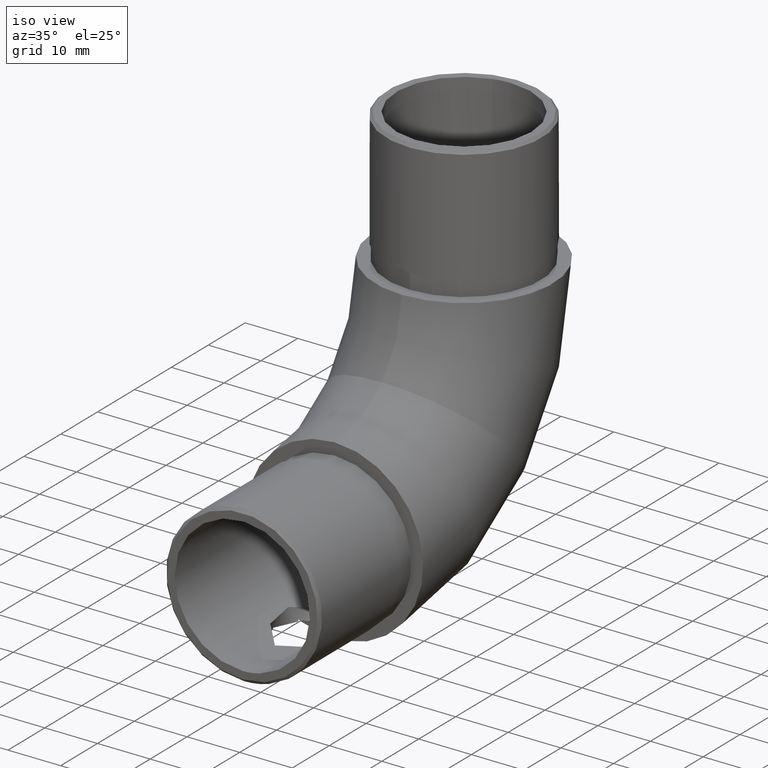
[diagram: clean part render]
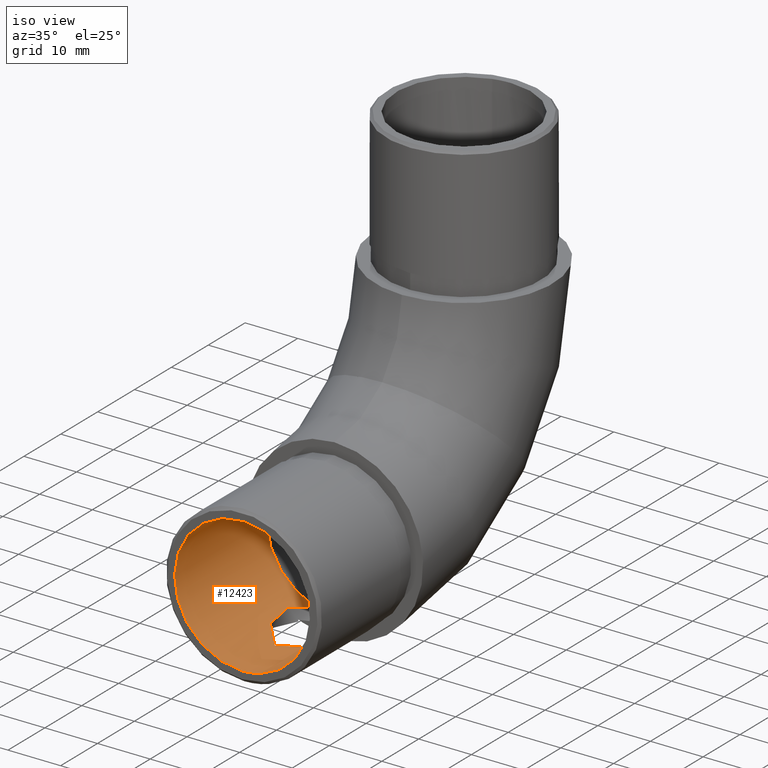
[diagram: same view with one face highlighted and labeled with its STEP entity id]
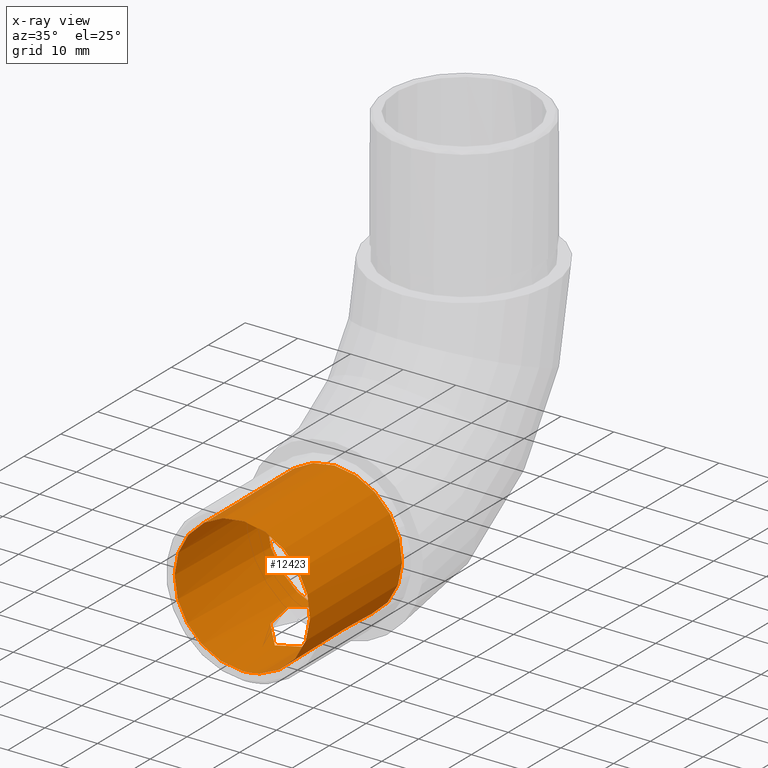
[diagram: x-ray of the same camera — body ghosted, the highlighted face saturated]
A machine part, iso view. The second image highlights one B-rep face of the part: STEP entity #12423.
The next image is the same camera in x-ray: the body ghosted, the highlighted face saturated — about 0% of this face is hidden behind the body in this view.
In plain terms, the highlighted cylindrical surface (bore or boss wall) has radius 12.85 mm, axis along (0, 1, 0).
Its self-contained STEP definition (entity closure, byte-faithful):
#130 = CARTESIAN_POINT ( 'NONE',  ( -4.724138302718724700, -1.278294540377648400, -11.95078086400891200 ) ) ;
#234 = CARTESIAN_POINT ( 'NONE',  ( -5.603455825222154000, -2.953071776140929700, -11.56498078162288400 ) ) ;
#320 = CARTESIAN_POINT ( 'NONE',  ( -1.313630713981051500, -14.45848172756713400, -12.78400375099388400 ) ) ;
#381 = CARTESIAN_POINT ( 'NONE',  ( 3.667890203469062400, -0.2162982495595532100, -12.31636267891674500 ) ) ;
#428 = CARTESIAN_POINT ( 'NONE',  ( -1.491974485709820500, -14.38574768619595900, -12.76429604509493600 ) ) ;
#471 = CARTESIAN_POINT ( 'NONE',  ( -1.839679911237627000, -14.21642703594991100, -12.71883718022304200 ) ) ;
#522 = CARTESIAN_POINT ( 'NONE',  ( 2.806524698150535600, -13.54509039443175000, -12.54292270172299000 ) ) ;
#734 = EDGE_LOOP ( 'NONE', ( #2236 ) ) ;
#1447 = AXIS2_PLACEMENT_3D ( 'NONE', #7666, #14645, #5192 ) ;
#1454 = CARTESIAN_POINT ( 'NONE',  ( -3.674326642183753500, -0.2087081254114504000, -12.31792550725374700 ) ) ;
#1507 = CARTESIAN_POINT ( 'NONE',  ( 3.514593609737754600, -0.1043258097945996400, -12.36112791014595700 ) ) ;
#1544 = CARTESIAN_POINT ( 'NONE',  ( 5.881964456891240400, -4.068810623760592500, -11.42513728814597100 ) ) ;
#1583 = CARTESIAN_POINT ( 'NONE',  ( 0.0000000000000000000, -3.469446951953614200E-015, 6.938893903907228400E-015 ) ) ;
#1595 = CARTESIAN_POINT ( 'NONE',  ( 5.714840056029520300, -3.319481089768712600, -11.50964252525316300 ) ) ;
#1657 = CARTESIAN_POINT ( 'NONE',  ( -5.500592085863894800, -9.040577918652086700, -11.61486406936708900 ) ) ;
#1708 = CARTESIAN_POINT ( 'NONE',  ( 5.979429543904376300, -6.379803961940029700, -11.37405668672119700 ) ) ;
#1758 = AXIS2_PLACEMENT_3D ( 'NONE', #1583, #5247, #14599 ) ;
#2236 = ORIENTED_EDGE ( 'NONE', *, *, #5557, .T. ) ;
#2486 = VERTEX_POINT ( 'NONE', #7036 ) ;
#2544 = CARTESIAN_POINT ( 'NONE',  ( -5.144561838688348500, -1.909217132646148500, -11.77733551524429600 ) ) ;
#2687 = CARTESIAN_POINT ( 'NONE',  ( 0.3993562748103812700, -14.68271605717937700, -12.84523881259817000 ) ) ;
#2714 = VERTEX_POINT ( 'NONE', #9468 ) ;
#2746 = CARTESIAN_POINT ( 'NONE',  ( 5.838458711250458700, -7.532727433130924400, -11.44720440475437300 ) ) ;
#2802 = CARTESIAN_POINT ( 'NONE',  ( 3.961955376853495200, -0.4558108372290828900, -12.22493835465599500 ) ) ;
#2840 = CARTESIAN_POINT ( 'NONE',  ( -3.582336268247616800, -12.73696335491602800, -12.34285981086399900 ) ) ;
#2886 = CARTESIAN_POINT ( 'NONE',  ( 0.9738445634313239700, -14.57009152197657000, -12.81436728556134600 ) ) ;
#3400 = CARTESIAN_POINT ( 'NONE',  ( -3.354947046405669700, -3.469446951953614200E-015, -12.40430692605652000 ) ) ;
#3690 = CARTESIAN_POINT ( 'NONE',  ( -3.354947046405669700, -3.469446951953614200E-015, -12.40430692605652000 ) ) ;
#3741 = CARTESIAN_POINT ( 'NONE',  ( -5.716439292456192900, -3.325143826458879300, -11.50884679561632900 ) ) ;
#3825 = CARTESIAN_POINT ( 'NONE',  ( 5.938130000637488400, -4.455998040028410900, -11.39571595575440800 ) ) ;
#3926 = CARTESIAN_POINT ( 'NONE',  ( 2.513495271976231100, -13.78895452746675700, -12.60595573021510100 ) ) ;
#3964 = CARTESIAN_POINT ( 'NONE',  ( 0.01406883924744318900, -14.71570724275842100, -12.85432741465101900 ) ) ;
#4015 = CARTESIAN_POINT ( 'NONE',  ( 4.500534060605702700, -0.9845006657656376600, -12.03937185160728500 ) ) ;
#4181 = CIRCLE ( 'NONE', #1447, 12.85000000000000000 ) ;
#4900 = CIRCLE ( 'NONE', #1758, 12.85000000000000000 ) ;
#5007 = CARTESIAN_POINT ( 'NONE',  ( 5.389732846709575800, -2.424512344575118700, -11.66531205260086600 ) ) ;
#5048 = CARTESIAN_POINT ( 'NONE',  ( -6.007010476272976800, -5.621919943201527700, -11.35951508050011300 ) ) ;
#5099 = CARTESIAN_POINT ( 'NONE',  ( -4.037643811111709400, -12.12979418525707200, -12.20150621456364900 ) ) ;
#5159 = CARTESIAN_POINT ( 'NONE',  ( 5.309753874246089500, -2.249622677805931400, -11.70205904697741600 ) ) ;
#5192 = DIRECTION ( 'NONE',  ( 0.0000000000000000000, 0.0000000000000000000, -1.000000000000000000 ) ) ;
#5209 = CARTESIAN_POINT ( 'NONE',  ( -5.964407168496710400, -6.775714977191272600, -11.38197601618613300 ) ) ;
#5247 = DIRECTION ( 'NONE',  ( 0.0000000000000000000, 1.000000000000000000, 0.0000000000000000000 ) ) ;
#5477 = EDGE_LOOP ( 'NONE', ( #7949, #14096 ) ) ;
#5557 = EDGE_CURVE ( 'NONE', #2714, #2714, #4181, .T. ) ;
#5709 = VERTEX_POINT ( 'NONE', #3400 ) ;
#6011 = CARTESIAN_POINT ( 'NONE',  ( -3.965265320964146900, -0.4457664257833232100, -12.22609665408351500 ) ) ;
#6061 = CARTESIAN_POINT ( 'NONE',  ( -5.317211338272671600, -2.245390872567586200, -11.69934875318567800 ) ) ;
#6118 = CARTESIAN_POINT ( 'NONE',  ( -5.938505547725642800, -4.458003813094830300, -11.39552035952224800 ) ) ;
#6202 = CARTESIAN_POINT ( 'NONE',  ( 5.040022994438508000, -1.747813170604177100, -11.82086665150341900 ) ) ;
#6218 = EDGE_CURVE ( 'NONE', #5709, #2486, #9000, .T. ) ;
#6257 = CARTESIAN_POINT ( 'NONE',  ( -4.624999448824778100, -11.14951866374620700, -11.99053386356343500 ) ) ;
#6311 = CARTESIAN_POINT ( 'NONE',  ( 5.505063650354327500, -9.023861573688353800, -11.61269807885731200 ) ) ;
#6395 = CARTESIAN_POINT ( 'NONE',  ( -4.797014807711429200, -10.80716439220418000, -11.92220774942280800 ) ) ;
#7036 = CARTESIAN_POINT ( 'NONE',  ( 3.354947046405669700, -3.469446951953614200E-015, -12.40430692605652000 ) ) ;
#7389 = CARTESIAN_POINT ( 'NONE',  ( 4.733851964650611400, -1.275691621039173300, -11.94830641911864400 ) ) ;
#7439 = CARTESIAN_POINT ( 'NONE',  ( -2.785319484987476300, -13.56366325253521100, -12.54767012818536600 ) ) ;
#7461 = DIRECTION ( 'NONE',  ( -0.0000000000000000000, 1.000000000000000000, -0.0000000000000000000 ) ) ;
#7482 = CARTESIAN_POINT ( 'NONE',  ( 0.7844109634408146200, -14.61798957068109700, -12.82748397104212200 ) ) ;
#7532 = CARTESIAN_POINT ( 'NONE',  ( 4.051837206556147200, -12.10883759139380100, -12.19676931027236400 ) ) ;
#7592 = CARTESIAN_POINT ( 'NONE',  ( 4.257323611925039900, -11.79126535387114100, -12.12592382661882700 ) ) ;
#7666 = CARTESIAN_POINT ( 'NONE',  ( 0.0000000000000000000, -24.99999999999999600, 0.0000000000000000000 ) ) ;
#7949 = ORIENTED_EDGE ( 'NONE', *, *, #8731, .T. ) ;
#8391 = CARTESIAN_POINT ( 'NONE',  ( -4.836005713313699800, -1.433113764347058200, -11.90579526232826000 ) ) ;
#8580 = CARTESIAN_POINT ( 'NONE',  ( 3.599746248621017200, -12.71563880280124300, -12.33776289697501300 ) ) ;
#8631 = CARTESIAN_POINT ( 'NONE',  ( 3.354947046405669700, -3.469446951953614200E-015, -12.40430692605652000 ) ) ;
#8693 = CARTESIAN_POINT ( 'NONE',  ( 6.007018247797257800, -5.610451780746946500, -11.35951033072704600 ) ) ;
#8731 = EDGE_CURVE ( 'NONE', #5709, #2486, #4900, .T. ) ;
#8745 = CARTESIAN_POINT ( 'NONE',  ( 4.806076638629991600, -10.78835424679144800, -11.91854980868984300 ) ) ;
#8787 = CARTESIAN_POINT ( 'NONE',  ( 4.634180284180419400, -11.13186370583383100, -11.98695983472581600 ) ) ;
#9000 = B_SPLINE_CURVE_WITH_KNOTS ( 'NONE', 3,
 ( #3690, #1454, #6011, #10946, #14320, #130, #8391, #2544, #6061, #234, #3741, #13217, #6118, #14405, #5048, #5209, #14552, #1657, #12244, #6395, #6257, #14512, #5099, #2840, #13379, #7439, #9836, #9924, #471, #428, #320, #13320, #11149, #9781, #3964, #2687, #7482, #2886, #13523, #14707, #3926, #522, #9979, #8580, #7532, #7592, #8787, #8745, #13420, #6311, #12331, #2746, #11034, #1708, #8693, #14607, #3825, #1544, #1595, #12137, #5007, #5159, #9877, #6202, #7389, #4015, #12290, #2802, #381, #1507, #8631 ),
 .UNSPECIFIED., .F., .F.,
 ( 4, 2, 2, 2, 2, 2, 2, 2, 2, 2, 2, 2, 2, 2, 2, 2, 2, 1, 2, 2, 2, 2, 2, 2, 2, 2, 2, 2, 2, 2, 2, 2, 2, 2, 2, 4 ),
 ( 1.645864322734776100E-017, 0.001156362685343179300, 0.001734544028014761700, 0.002312725370686343900, 0.003469088056029510000, 0.004625450741372675600, 0.005781813426715839100, 0.006938176112059003500, 0.009250901482745330400, 0.01156362685343165700, 0.01271998953877482100, 0.01387635222411798300, 0.01503271490946114600, 0.01618907759480431000, 0.01676725893747589200, 0.01734544028014747800, 0.01792362162281906100, 0.01850180296549064000, 0.01907998430816222300, 0.01965816565083380200, 0.02081452833617697000, 0.02197089102152013600, 0.02312725370686330400, 0.02428361639220647000, 0.02543997907754963800, 0.02775270444823596900, 0.02890906713357913400, 0.03006542981892230300, 0.03122179250426546800, 0.03237815518960863300, 0.03353451787495179800, 0.03411269921762338100, 0.03469088056029496400, 0.03584724324563812200, 0.03642542458830970400, 0.03700360593098128700 ),
 .UNSPECIFIED. ) ;
#9468 = CARTESIAN_POINT ( 'NONE',  ( 0.0000000000000000000, -24.99999999999999600, -12.85000000000000000 ) ) ;
#9781 = CARTESIAN_POINT ( 'NONE',  ( -0.3716804752514238400, -14.68575966351148800, -12.84607611302289100 ) ) ;
#9836 = CARTESIAN_POINT ( 'NONE',  ( -2.490981156786869400, -13.80631959023854100, -12.61047042790365000 ) ) ;
#9877 = CARTESIAN_POINT ( 'NONE',  ( 5.134742340884105100, -1.911100374080580500, -11.77990208943815300 ) ) ;
#9902 = DIRECTION ( 'NONE',  ( 0.0000000000000000000, 0.0000000000000000000, 1.000000000000000000 ) ) ;
#9924 = CARTESIAN_POINT ( 'NONE',  ( -2.008602322716843200, -14.11984806880688100, -12.69309377548678300 ) ) ;
#9979 = CARTESIAN_POINT ( 'NONE',  ( 3.352251776693990300, -13.00604960718707500, -12.40821900227340900 ) ) ;
#10182 = FACE_OUTER_BOUND ( 'NONE', #734, .T. ) ;
#10946 = CARTESIAN_POINT ( 'NONE',  ( -4.361530629399088500, -0.8439519085255679000, -12.08797409345221400 ) ) ;
#11034 = CARTESIAN_POINT ( 'NONE',  ( 5.944936260531433100, -6.765020914021654600, -11.39227025949712600 ) ) ;
#11149 = CARTESIAN_POINT ( 'NONE',  ( -0.7576639760485756000, -14.62388235513307900, -12.82909829943861300 ) ) ;
#12137 = CARTESIAN_POINT ( 'NONE',  ( 5.603996958418672000, -2.954758843790040500, -11.56471443070926600 ) ) ;
#12235 = CYLINDRICAL_SURFACE ( 'NONE', #14896, 12.85000000000000000 ) ;
#12244 = CARTESIAN_POINT ( 'NONE',  ( -5.259330434664507300, -9.763539611989639200, -11.72917295133001400 ) ) ;
#12290 = CARTESIAN_POINT ( 'NONE',  ( 4.103042050672590900, -0.5837897578430854000, -12.17814605280290300 ) ) ;
#12331 = CARTESIAN_POINT ( 'NONE',  ( 5.767291719416775200, -7.909916244931593200, -11.48348125959345000 ) ) ;
#12423 = ADVANCED_FACE ( 'NONE', ( #10182, #14825 ), #12235, .F. ) ;
#13217 = CARTESIAN_POINT ( 'NONE',  ( -5.883217624937782600, -4.075963070656991100, -11.42449049747632000 ) ) ;
#13320 = CARTESIAN_POINT ( 'NONE',  ( -0.9469403869628787400, -14.57746954596950100, -12.81638332220438800 ) ) ;
#13379 = CARTESIAN_POINT ( 'NONE',  ( -3.333124739058061200, -13.02714620667996400, -12.41339235475481600 ) ) ;
#13420 = CARTESIAN_POINT ( 'NONE',  ( 5.266705914523359200, -9.743458190676943100, -11.72583121166032200 ) ) ;
#13523 = CARTESIAN_POINT ( 'NONE',  ( 1.523814202572039600, -14.38725390138027100, -12.76463939670832200 ) ) ;
#14096 = ORIENTED_EDGE ( 'NONE', *, *, #6218, .F. ) ;
#14320 = CARTESIAN_POINT ( 'NONE',  ( -4.486887895106883100, -0.9838212078158031800, -12.04186376685598800 ) ) ;
#14405 = CARTESIAN_POINT ( 'NONE',  ( -6.000680535715871700, -5.233754348451721100, -11.36290304072577800 ) ) ;
#14512 = CARTESIAN_POINT ( 'NONE',  ( -4.244810457643471800, -11.81147569102167300, -12.13033826459805200 ) ) ;
#14552 = CARTESIAN_POINT ( 'NONE',  ( -5.855277517376178400, -7.538406354016626000, -11.44016196736095900 ) ) ;
#14599 = DIRECTION ( 'NONE',  ( 0.0000000000000000000, 0.0000000000000000000, 1.000000000000000000 ) ) ;
#14607 = CARTESIAN_POINT ( 'NONE',  ( 6.000246690113846700, -5.225696224424488900, -11.36313203771233800 ) ) ;
#14642 = CARTESIAN_POINT ( 'NONE',  ( 0.0000000000000000000, -3.000000000000000000, 0.0000000000000000000 ) ) ;
#14645 = DIRECTION ( 'NONE',  ( 0.0000000000000000000, -1.000000000000000000, 0.0000000000000000000 ) ) ;
#14707 = CARTESIAN_POINT ( 'NONE',  ( 1.874089704377890800, -14.20980737071311500, -12.71674353497524400 ) ) ;
#14825 = FACE_OUTER_BOUND ( 'NONE', #5477, .T. ) ;
#14896 = AXIS2_PLACEMENT_3D ( 'NONE', #14642, #7461, #9902 ) ;